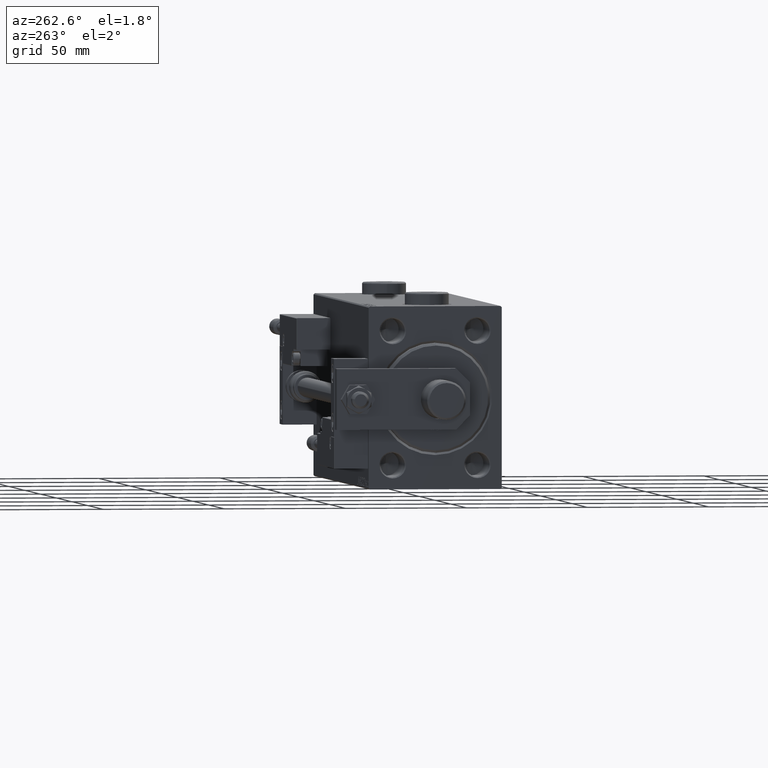
[diagram: clean part render]
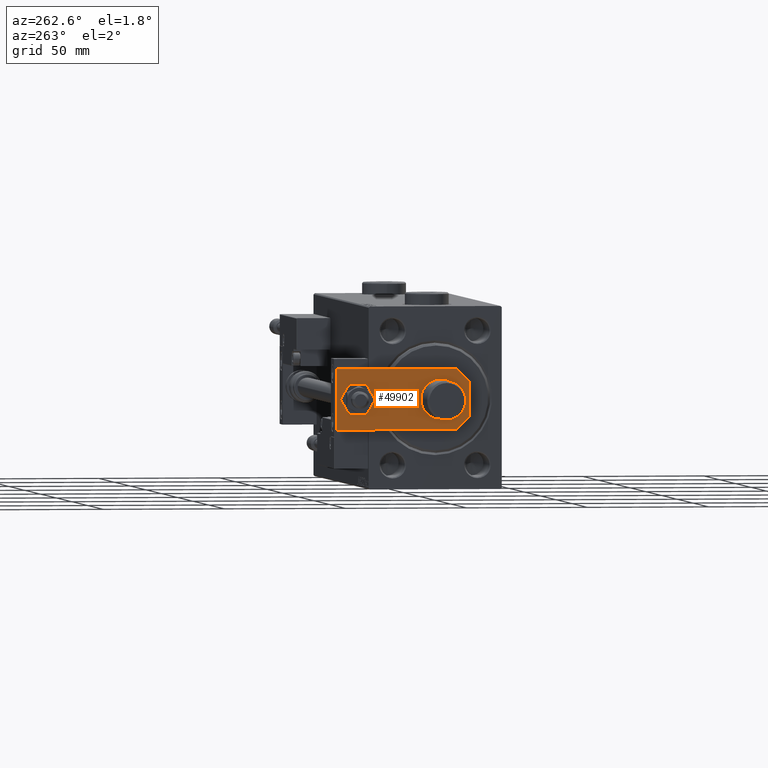
[diagram: same view with one face highlighted and labeled with its STEP entity id]
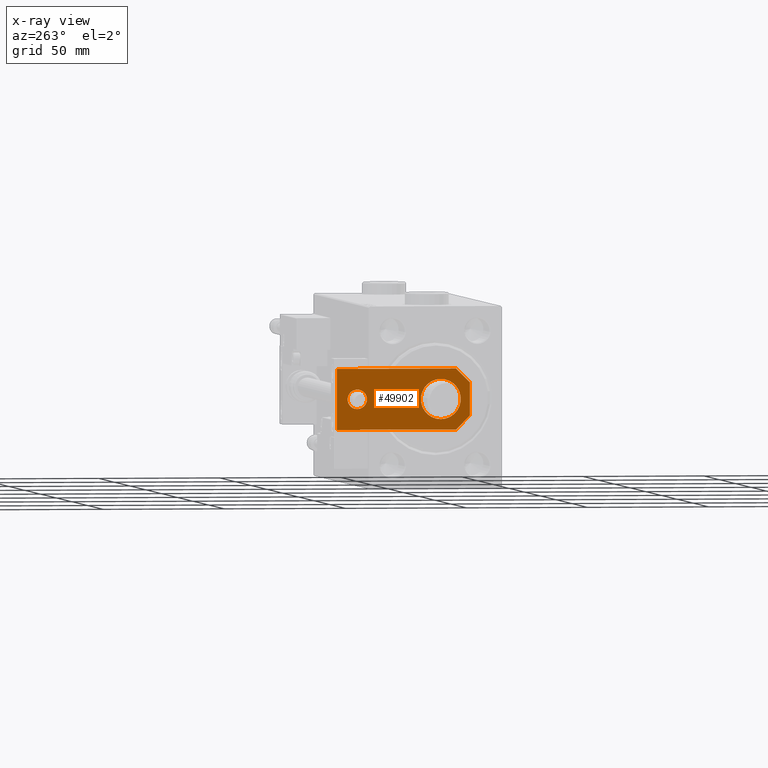
[diagram: x-ray of the same camera — body ghosted, the highlighted face saturated]
A machine part, auxiliary view. The second image highlights one B-rep face of the part: STEP entity #49902.
The next image is the same camera in x-ray: the body ghosted, the highlighted face saturated — about 0% of this face is hidden behind the body in this view.
In plain terms, the highlighted planar face has unit normal (-1, -0, 0).
Its self-contained STEP definition (entity closure, byte-faithful):
#776 = AXIS2_PLACEMENT_3D ( 'NONE', #17934, #13106, #34374 ) ;
#998 = CIRCLE ( 'NONE', #37109, 4.000000000000000888 ) ;
#1075 = EDGE_CURVE ( 'NONE', #4570, #34239, #998, .T. ) ;
#1504 = LINE ( 'NONE', #42202, #39093 ) ;
#1922 = LINE ( 'NONE', #6230, #27174 ) ;
#2063 = AXIS2_PLACEMENT_3D ( 'NONE', #37642, #41419, #20939 ) ;
#2582 = DIRECTION ( 'NONE',  ( 0.000000000000000000, 0.000000000000000000, 1.000000000000000000 ) ) ;
#2699 = LINE ( 'NONE', #4293, #39031 ) ;
#3340 = CIRCLE ( 'NONE', #776, 8.250000000000000000 ) ;
#4217 = CARTESIAN_POINT ( 'NONE',  ( -12.49999999999999822, 55.00000000000000000, 6.000000000000000000 ) ) ;
#4293 = CARTESIAN_POINT ( 'NONE',  ( -3.420000000000013696, -3.420000000000006146, 6.000000000000000000 ) ) ;
#4550 = DIRECTION ( 'NONE',  ( -9.462128050782584375E-17, -1.000000000000000000, 0.000000000000000000 ) ) ;
#4552 = EDGE_CURVE ( 'NONE', #37933, #35731, #1504, .T. ) ;
#4570 = VERTEX_POINT ( 'NONE', #41940 ) ;
#5435 = CARTESIAN_POINT ( 'NONE',  ( -4.000000000000000888, 46.50000000000000000, 6.000000000000000000 ) ) ;
#6230 = CARTESIAN_POINT ( 'NONE',  ( 12.50000000000000000, 55.00000000000000000, 6.000000000000000000 ) ) ;
#8231 = EDGE_CURVE ( 'NONE', #32033, #46033, #8575, .T. ) ;
#8575 = LINE ( 'NONE', #24999, #22042 ) ;
#8803 = DIRECTION ( 'NONE',  ( 0.7071067811865483499, 0.7071067811865465735, -0.000000000000000000 ) ) ;
#8895 = VERTEX_POINT ( 'NONE', #27123 ) ;
#8941 = DIRECTION ( 'NONE',  ( 0.000000000000000000, 0.000000000000000000, 1.000000000000000000 ) ) ;
#9728 = CARTESIAN_POINT ( 'NONE',  ( -1.432611055310774642E-16, 46.50000000000000000, 6.000000000000000000 ) ) ;
#10596 = EDGE_CURVE ( 'NONE', #8895, #37933, #16047, .T. ) ;
#10831 = DIRECTION ( 'NONE',  ( -6.308085367188389994E-17, 1.000000000000000000, 0.000000000000000000 ) ) ;
#10998 = AXIS2_PLACEMENT_3D ( 'NONE', #47578, #15240, #44342 ) ;
#12596 = ORIENTED_EDGE ( 'NONE', *, *, #31343, .T. ) ;
#13106 = DIRECTION ( 'NONE',  ( 0.000000000000000000, 0.000000000000000000, 1.000000000000000000 ) ) ;
#14592 = VERTEX_POINT ( 'NONE', #44273 ) ;
#15060 = ORIENTED_EDGE ( 'NONE', *, *, #8231, .T. ) ;
#15094 = EDGE_CURVE ( 'NONE', #19578, #14592, #22146, .T. ) ;
#15240 = DIRECTION ( 'NONE',  ( 0.000000000000000000, 0.000000000000000000, 1.000000000000000000 ) ) ;
#16047 = LINE ( 'NONE', #16596, #25547 ) ;
#16596 = CARTESIAN_POINT ( 'NONE',  ( -12.50000000000000355, 4.814824860968089633E-32, 6.000000000000000000 ) ) ;
#16642 = CARTESIAN_POINT ( 'NONE',  ( 12.50000000000000355, 5.659999999999991260, 6.000000000000000000 ) ) ;
#17934 = CARTESIAN_POINT ( 'NONE',  ( -9.629649721936179265E-32, 11.99999999999999645, 6.000000000000000000 ) ) ;
#17977 = ORIENTED_EDGE ( 'NONE', *, *, #10596, .T. ) ;
#18630 = EDGE_CURVE ( 'NONE', #14592, #19578, #3340, .T. ) ;
#19578 = VERTEX_POINT ( 'NONE', #51587 ) ;
#19998 = LINE ( 'NONE', #40472, #23833 ) ;
#20040 = ORIENTED_EDGE ( 'NONE', *, *, #49439, .T. ) ;
#20939 = DIRECTION ( 'NONE',  ( 1.000000000000000000, 0.000000000000000000, 0.000000000000000000 ) ) ;
#21200 = FACE_BOUND ( 'NONE', #25662, .T. ) ;
#21851 = CARTESIAN_POINT ( 'NONE',  ( 12.50000000000000000, 55.00000000000000000, 6.000000000000000000 ) ) ;
#22042 = VECTOR ( 'NONE', #4550, 1000.000000000000000 ) ;
#22146 = CIRCLE ( 'NONE', #10998, 8.250000000000000000 ) ;
#22647 = DIRECTION ( 'NONE',  ( -1.000000000000000000, 0.000000000000000000, 0.000000000000000000 ) ) ;
#23039 = CARTESIAN_POINT ( 'NONE',  ( -1.432611055310774642E-16, 46.50000000000000000, 6.000000000000000000 ) ) ;
#23833 = VECTOR ( 'NONE', #10831, 1000.000000000000000 ) ;
#24787 = ORIENTED_EDGE ( 'NONE', *, *, #29292, .T. ) ;
#24999 = CARTESIAN_POINT ( 'NONE',  ( -12.49999999999999822, 55.00000000000000000, 6.000000000000000000 ) ) ;
#25547 = VECTOR ( 'NONE', #28707, 1000.000000000000000 ) ;
#25662 = EDGE_LOOP ( 'NONE', ( #43606, #52630 ) ) ;
#26034 = FACE_BOUND ( 'NONE', #37741, .T. ) ;
#27123 = CARTESIAN_POINT ( 'NONE',  ( -6.840000000000012292, 4.814824860968089633E-32, 6.000000000000000000 ) ) ;
#27174 = VECTOR ( 'NONE', #22647, 1000.000000000000000 ) ;
#28437 = CARTESIAN_POINT ( 'NONE',  ( -12.50000000000000355, 5.660000000000005471, 6.000000000000000000 ) ) ;
#28707 = DIRECTION ( 'NONE',  ( 1.000000000000000000, 0.000000000000000000, 0.000000000000000000 ) ) ;
#28720 = ORIENTED_EDGE ( 'NONE', *, *, #42745, .F. ) ;
#29292 = EDGE_CURVE ( 'NONE', #49296, #32033, #1922, .T. ) ;
#30205 = DIRECTION ( 'NONE',  ( 1.000000000000000000, 0.000000000000000000, 0.000000000000000000 ) ) ;
#31343 = EDGE_CURVE ( 'NONE', #35731, #49296, #19998, .T. ) ;
#31409 = DIRECTION ( 'NONE',  ( 1.000000000000000000, 0.000000000000000000, 0.000000000000000000 ) ) ;
#32033 = VERTEX_POINT ( 'NONE', #4217 ) ;
#33606 = FACE_OUTER_BOUND ( 'NONE', #37413, .T. ) ;
#34239 = VERTEX_POINT ( 'NONE', #5435 ) ;
#34374 = DIRECTION ( 'NONE',  ( 1.000000000000000000, 0.000000000000000000, 0.000000000000000000 ) ) ;
#35731 = VERTEX_POINT ( 'NONE', #16642 ) ;
#37109 = AXIS2_PLACEMENT_3D ( 'NONE', #9728, #8941, #30205 ) ;
#37174 = DIRECTION ( 'NONE',  ( 0.7071067811865467956, -0.7071067811865483499, 0.000000000000000000 ) ) ;
#37413 = EDGE_LOOP ( 'NONE', ( #15060, #20040, #17977, #42552, #12596, #24787 ) ) ;
#37642 = CARTESIAN_POINT ( 'NONE',  ( 0.000000000000000000, 0.000000000000000000, 6.000000000000000000 ) ) ;
#37741 = EDGE_LOOP ( 'NONE', ( #28720, #47861 ) ) ;
#37933 = VERTEX_POINT ( 'NONE', #39090 ) ;
#39031 = VECTOR ( 'NONE', #37174, 1000.000000000000000 ) ;
#39090 = CARTESIAN_POINT ( 'NONE',  ( 6.839999999999998970, 4.814824860968089633E-32, 6.000000000000000000 ) ) ;
#39093 = VECTOR ( 'NONE', #8803, 1000.000000000000114 ) ;
#40472 = CARTESIAN_POINT ( 'NONE',  ( 12.50000000000000355, 4.814824860968089633E-32, 6.000000000000000000 ) ) ;
#40539 = AXIS2_PLACEMENT_3D ( 'NONE', #23039, #2582, #31409 ) ;
#41419 = DIRECTION ( 'NONE',  ( -0.000000000000000000, 0.000000000000000000, 1.000000000000000000 ) ) ;
#41940 = CARTESIAN_POINT ( 'NONE',  ( 4.000000000000000888, 46.50000000000000000, 6.000000000000000000 ) ) ;
#42202 = CARTESIAN_POINT ( 'NONE',  ( 3.419999999999990603, -3.419999999999999485, 6.000000000000000000 ) ) ;
#42552 = ORIENTED_EDGE ( 'NONE', *, *, #4552, .T. ) ;
#42745 = EDGE_CURVE ( 'NONE', #34239, #4570, #52555, .T. ) ;
#43606 = ORIENTED_EDGE ( 'NONE', *, *, #15094, .F. ) ;
#44273 = CARTESIAN_POINT ( 'NONE',  ( 8.250000000000000000, 11.99999999999999822, 6.000000000000000000 ) ) ;
#44342 = DIRECTION ( 'NONE',  ( 1.000000000000000000, 0.000000000000000000, 0.000000000000000000 ) ) ;
#46033 = VERTEX_POINT ( 'NONE', #28437 ) ;
#47578 = CARTESIAN_POINT ( 'NONE',  ( -9.629649721936179265E-32, 11.99999999999999645, 6.000000000000000000 ) ) ;
#47861 = ORIENTED_EDGE ( 'NONE', *, *, #1075, .F. ) ;
#49296 = VERTEX_POINT ( 'NONE', #21851 ) ;
#49439 = EDGE_CURVE ( 'NONE', #46033, #8895, #2699, .T. ) ;
#49902 = ADVANCED_FACE ( 'NONE', ( #26034, #33606, #21200 ), #50026, .T. ) ;
#50026 = PLANE ( 'NONE',  #2063 ) ;
#51587 = CARTESIAN_POINT ( 'NONE',  ( -8.250000000000000000, 11.99999999999999645, 6.000000000000000000 ) ) ;
#52555 = CIRCLE ( 'NONE', #40539, 4.000000000000000888 ) ;
#52630 = ORIENTED_EDGE ( 'NONE', *, *, #18630, .F. ) ;